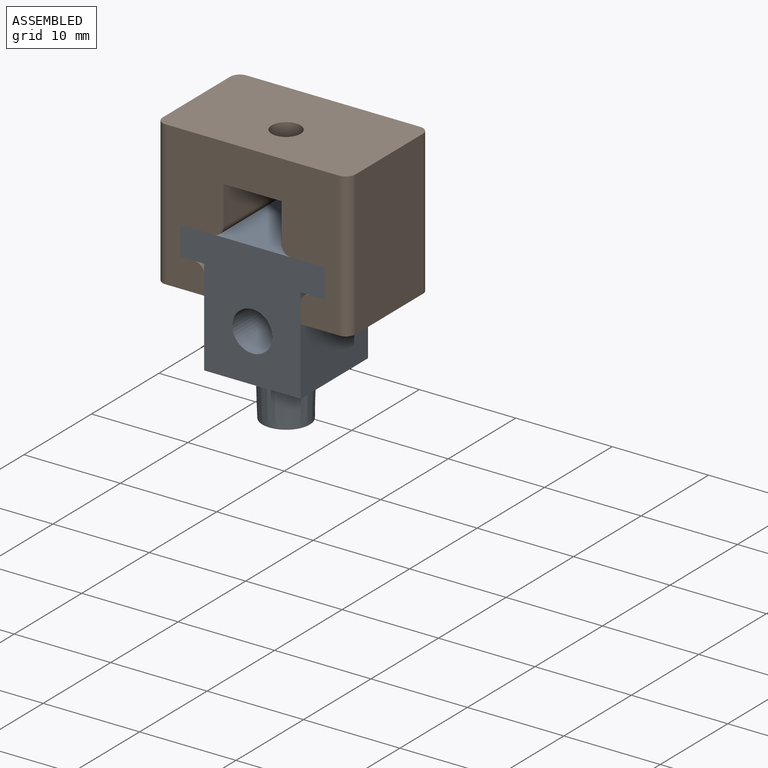
[diagram: assembled view]
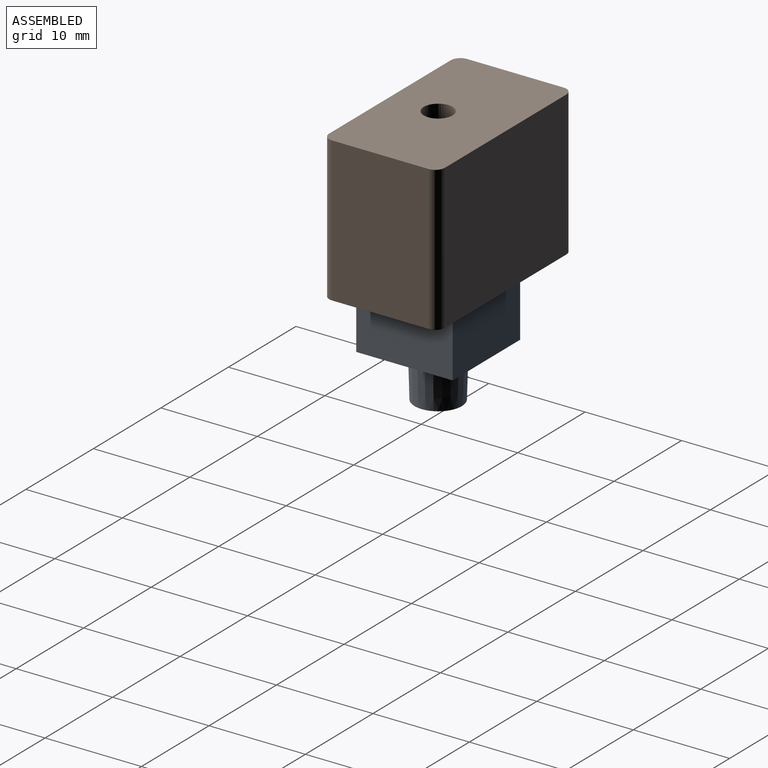
[diagram: assembled view, second angle]
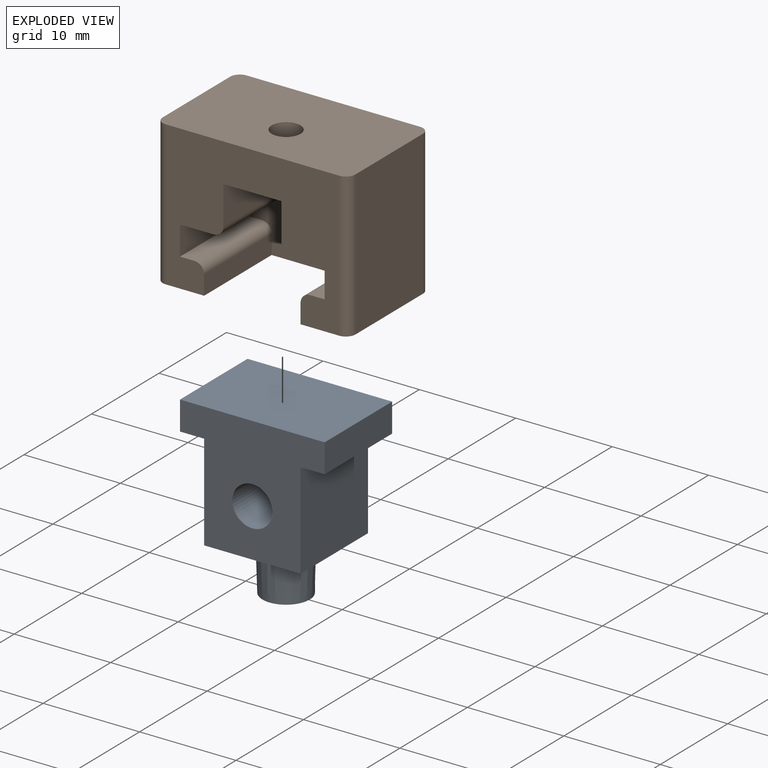
[diagram: exploded view]
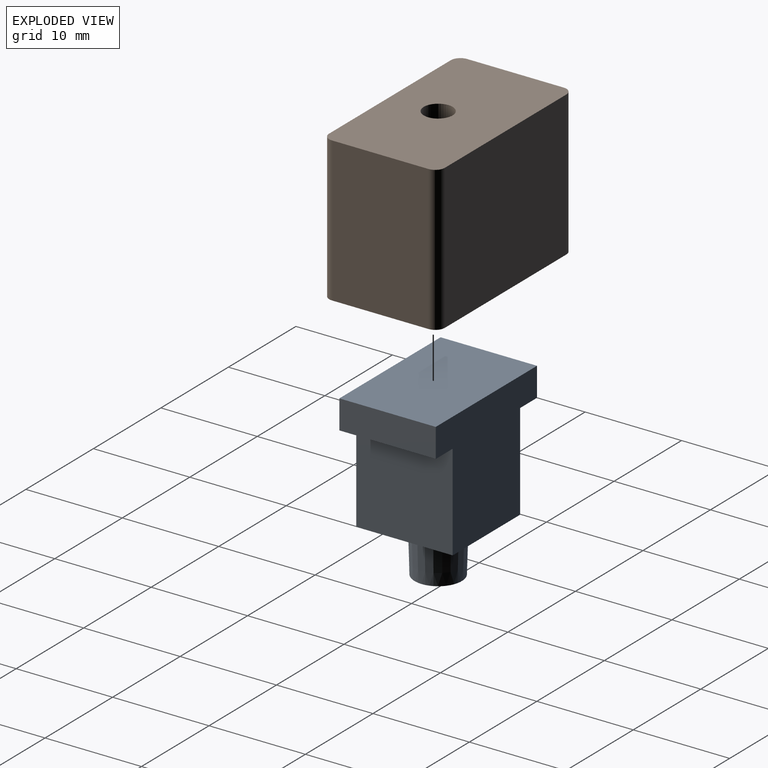
[diagram: exploded view, second angle]
ASSEMBLY  parts=2 mates=2
PART A: 15 faces, bbox 15x10x18 mm
  f0: plane 15x13mm, normal (0,-1,0), area 145mm2, adj f1,f3,f4,f10,f11,f12,f13,f14
  f1: plane 10x10mm, normal (1,0,0), area 100mm2, adj f0,f2,f4,f10
  f2: plane 15x13mm, normal (0,1,0), area 131.5mm2, adj f1,f3,f4,f8,f10,f11,f12,f13
  f3: plane 10x10mm, normal (-1,0,0), area 100mm2, adj f0,f2,f4,f14
  f4: plane 10x10mm, normal (0,0,-1), area 78.8mm2, adj f0,f1,f2,f3,f6
  f5: plane 4.9x4.9mm, normal (0,0,-1), area 17.1mm2, adj f6,f7
  f6: cone r=2.6mm half-angle=1.7deg, axis (0,0,1), area 79.4mm2, adj f4,f5
  f7: cylinder r=0.75mm len=8.07mm, axis (0,0,-1), area 37.7mm2, adj f5,f8
  f8: cylinder r=2.08mm len=6mm, axis (0,1,0), area 76.4mm2, adj f2,f7,f9
  f9: plane 4.15x4.15mm, normal (0,1,0), area 13.5mm2, adj f8
  f10: plane 10x2.5mm, normal (0,0,-1), area 25mm2, adj f0,f1,f2,f11
  f11: plane 10x3mm, normal (1,0,0), area 30mm2, adj f0,f2,f10,f13
  f12: plane 10x3mm, normal (-1,0,0), area 30mm2, adj f0,f2,f13,f14
  f13: plane 15x10mm, normal (0,0,1), area 150mm2, adj f0,f2,f11,f12
  f14: plane 10x2.5mm, normal (0,0,-1), area 25mm2, adj f0,f2,f3,f12
PART B: 27 faces, bbox 20x12x15 mm
  f0: plane 20x12mm, normal (0,0,1), area 232.1mm2, adj f1,f14,f15,f16,f17,f23,f24,f25
  f1: plane 15x10mm, normal (-1,0,0), area 150mm2, adj f0,f13,f24,f26
  f2: plane 10x2mm, normal (1,0,0), area 20mm2, adj f13,f15,f18,f19
  f3: plane 10x1.5mm, normal (0,0,1), area 15mm2, adj f4,f15,f18,f19
  f4: plane 10x3mm, normal (1,0,0), area 30mm2, adj f3,f5,f15,f18
  f5: plane 10x3.5mm, normal (0,0,-1), area 35mm2, adj f4,f15,f18,f22
  f6: plane 10x4mm, normal (1,0,0), area 40mm2, adj f7,f15,f18,f22
  f7: plane 10x6mm, normal (0,0,-1), area 52.9mm2, adj f6,f8,f15,f16,f18
  f8: plane 10x4mm, normal (-1,0,0), area 40mm2, adj f7,f15,f18,f21
  f9: plane 10x3.5mm, normal (0,0,-1), area 35mm2, adj f10,f15,f18,f21
  f10: plane 10x3mm, normal (-1,0,0), area 30mm2, adj f9,f11,f15,f18
  f11: plane 10x1.5mm, normal (0,0,1), area 15mm2, adj f10,f15,f18,f20
  f12: plane 10x2mm, normal (-1,0,0), area 20mm2, adj f13,f15,f18,f20
  f13: plane 20x12mm, normal (0,0,-1), area 139.1mm2, adj f1,f2,f12,f14,f15,f17,f18,f23
  f14: plane 15x10mm, normal (1,0,0), area 150mm2, adj f0,f13,f23,f25
  f15: plane 18x15mm, normal (0,-1,0), area 164.1mm2, adj f0,f2,f3,f4,f5,f6,f7,f8
  f16: cylinder r=1.5mm len=4mm, axis (0,0,1), area 37.7mm2, adj f0,f7
  f17: plane 18x15mm, normal (0,1,0), area 270mm2, adj f0,f13,f25,f26
  f18: plane 15x11mm, normal (0,-1,0), area 105.9mm2, adj f2,f3,f4,f5,f6,f7,f8,f9
  f19: cylinder r=1mm len=10mm, axis (0,1,0), area 15.7mm2, adj f2,f3,f15,f18
  f20: cylinder r=1mm len=10mm, axis (0,-1,0), area 15.7mm2, adj f11,f12,f15,f18
  f21: cylinder r=1mm len=10mm, axis (0,1,0), area 15.7mm2, adj f8,f9,f15,f18
  f22: cylinder r=1mm len=10mm, axis (0,-1,0), area 15.7mm2, adj f5,f6,f15,f18
  f23: cylinder r=1mm len=15mm, axis (0,0,-1), area 23.6mm2, adj f0,f13,f14,f15
  f24: cylinder r=1mm len=15mm, axis (0,0,1), area 23.6mm2, adj f0,f1,f13,f15
  f25: cylinder r=1mm len=15mm, axis (0,0,-1), area 23.6mm2, adj f0,f13,f14,f17
  f26: cylinder r=1mm len=15mm, axis (0,0,1), area 23.6mm2, adj f0,f1,f13,f17
PLACE A rot(axis=(0,0,1),180deg) t=(-5.2,-0.87,-4.82)mm
PLACE B rot(axis=(0,0,1),0deg) t=(-5.2,4.13,11.68)mm
MATE planar B.f10 <-> A.f12  axis (-1,0,0) through (2.3,-5.87,11.68)mm
MATE planar A.f6 <-> B.f5  axis (0,0,1) through (-5.2,-0.87,13.18)mm
